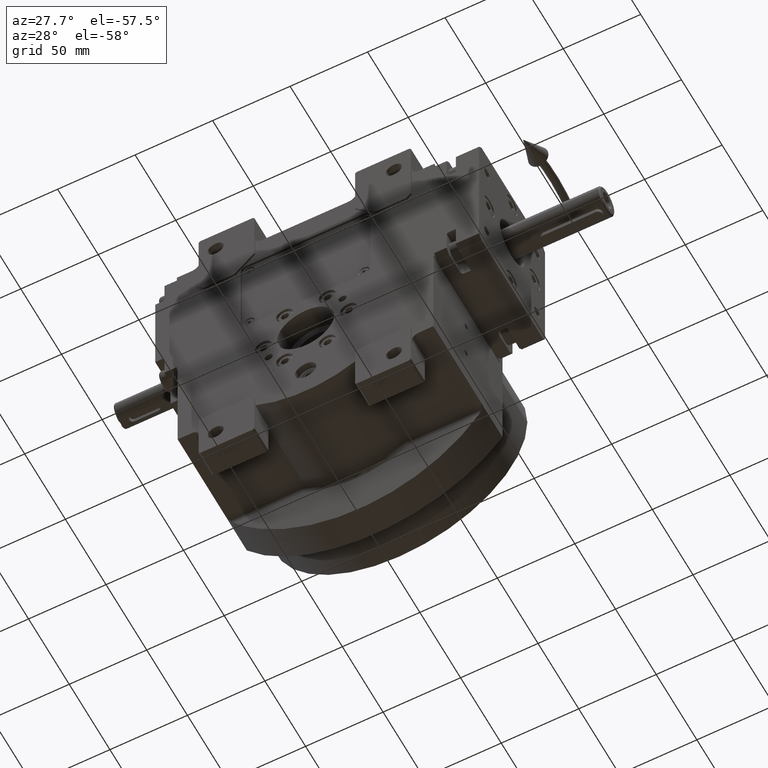
[diagram: clean part render]
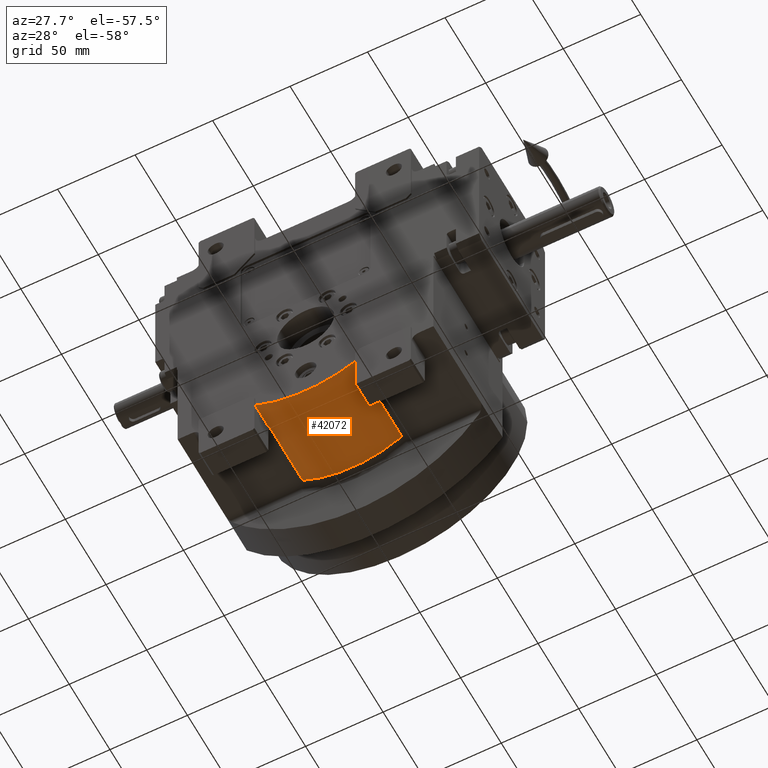
[diagram: same view with one face highlighted and labeled with its STEP entity id]
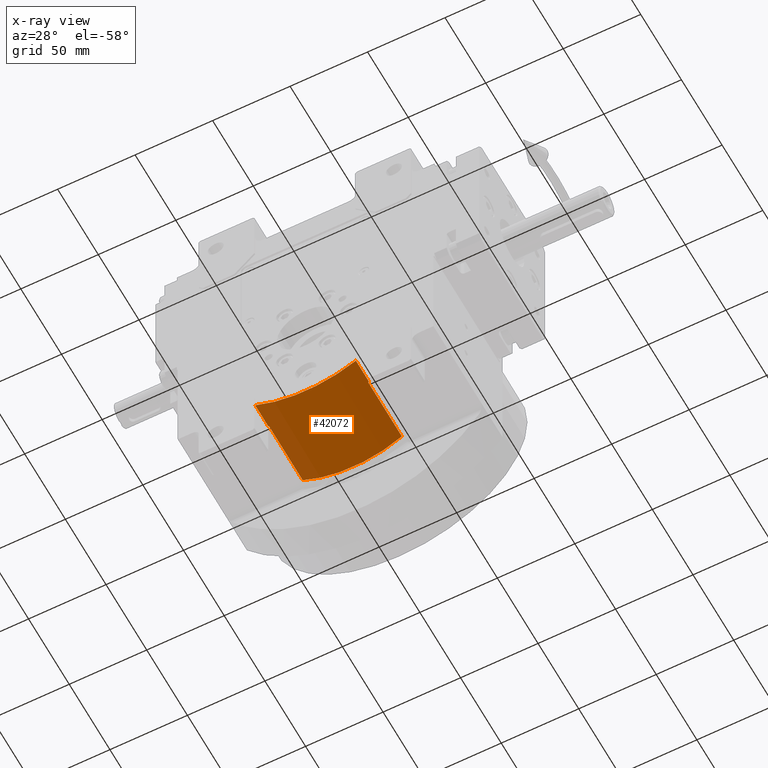
[diagram: x-ray of the same camera — body ghosted, the highlighted face saturated]
A machine part, auxiliary view. The second image highlights one B-rep face of the part: STEP entity #42072.
The next image is the same camera in x-ray: the body ghosted, the highlighted face saturated — about 0% of this face is hidden behind the body in this view.
In plain terms, the highlighted cylindrical surface (partial cylindrical patch) has radius 67 mm, axis along (0, 1, 0).
Its self-contained STEP definition (entity closure, byte-faithful):
#1488 = CARTESIAN_POINT ( 'NONE',  ( -31.98736729856865324, -24.50000000000000000, -58.87111629064339979 ) ) ;
#2259 = VERTEX_POINT ( 'NONE', #62065 ) ;
#3034 = DIRECTION ( 'NONE',  ( 0.000000000000000000, -1.000000000000000000, 1.332267629550188046E-15 ) ) ;
#4819 = EDGE_CURVE ( 'NONE', #37618, #5201, #71367, .T. ) ;
#5201 = VERTEX_POINT ( 'NONE', #53385 ) ;
#6222 = DIRECTION ( 'NONE',  ( 0.000000000000000000, -1.000000000000000000, 0.000000000000000000 ) ) ;
#6969 = CARTESIAN_POINT ( 'NONE',  ( -32.50000000000000000, -40.50000000000000000, -58.58967485828879518 ) ) ;
#7958 = B_SPLINE_CURVE_WITH_KNOTS ( 'NONE', 3,
 ( #26420, #53611, #54327, #71161 ),
 .UNSPECIFIED., .F., .F.,
 ( 4, 4 ),
 ( 0.000000000000000000, 1.000000000000000000 ),
 .UNSPECIFIED. ) ;
#7963 = EDGE_CURVE ( 'NONE', #8195, #10354, #27126, .T. ) ;
#8195 = VERTEX_POINT ( 'NONE', #42865 ) ;
#8889 = EDGE_CURVE ( 'NONE', #37618, #35265, #7958, .T. ) ;
#10007 = CARTESIAN_POINT ( 'NONE',  ( 32.50000000000000000, -24.50000000000000000, -58.58967485828879518 ) ) ;
#10354 = VERTEX_POINT ( 'NONE', #6969 ) ;
#11434 = CARTESIAN_POINT ( 'NONE',  ( -31.98743979880390498, 16.91834305889650025, -58.87107689861610282 ) ) ;
#12203 = VECTOR ( 'NONE', #66267, 1000.000000000000114 ) ;
#15135 = DIRECTION ( 'NONE',  ( -0.4850746268656720428, 0.000000000000000000, -0.8744727590789371785 ) ) ;
#19062 = CARTESIAN_POINT ( 'NONE',  ( 32.50000000000000000, -24.50000000000000000, -58.58967485828879518 ) ) ;
#20300 = B_SPLINE_CURVE_WITH_KNOTS ( 'NONE', 3,
 ( #1488, #51732, #39681, #67144 ),
 .UNSPECIFIED., .F., .F.,
 ( 4, 4 ),
 ( 0.000000000000000000, 1.000000000000000000 ),
 .UNSPECIFIED. ) ;
#20363 = B_SPLINE_CURVE_WITH_KNOTS ( 'NONE', 3,
 ( #43383, #37880, #60230, #47424, #60590, #61304, #56522, #66073, #33086, #11434 ),
 .UNSPECIFIED., .F., .F.,
 ( 4, 1, 1, 1, 1, 1, 1, 4 ),
 ( 0.000000000000000000, 0.1305023962609451471, 0.2778841802425977558, 0.4260802021475848522, 0.5745278981235040217, 0.7227241387829929087, 0.8701063549861712820, 1.000000000000000000 ),
 .UNSPECIFIED. ) ;
#20521 = ORIENTED_EDGE ( 'NONE', *, *, #72165, .T. ) ;
#21134 = DIRECTION ( 'NONE',  ( 2.301971673942290477E-06, 0.9999999999965683006, 1.250768801893084184E-06 ) ) ;
#23523 = VECTOR ( 'NONE', #3034, 1000.000000000000000 ) ;
#24309 = EDGE_CURVE ( 'NONE', #35265, #60151, #58788, .T. ) ;
#24422 = EDGE_CURVE ( 'NONE', #5201, #31665, #20363, .T. ) ;
#25530 = AXIS2_PLACEMENT_3D ( 'NONE', #66237, #55249, #27701 ) ;
#26420 = CARTESIAN_POINT ( 'NONE',  ( 31.98736729856859640, -24.50000000000000000, -58.87111629064349927 ) ) ;
#26514 = CARTESIAN_POINT ( 'NONE',  ( -31.98743979880390498, 16.91834305889650025, -58.87107689861610282 ) ) ;
#27126 = LINE ( 'NONE', #34085, #42436 ) ;
#27701 = DIRECTION ( 'NONE',  ( 0.000000000000000000, 0.000000000000000000, 1.000000000000000000 ) ) ;
#28106 = LINE ( 'NONE', #39512, #12203 ) ;
#28436 = CYLINDRICAL_SURFACE ( 'NONE', #25530, 67.00000000000000000 ) ;
#31266 = DIRECTION ( 'NONE',  ( 0.000000000000000000, -1.000000000000000000, 0.000000000000000000 ) ) ;
#31665 = VERTEX_POINT ( 'NONE', #26514 ) ;
#33086 = CARTESIAN_POINT ( 'NONE',  ( -29.45257542784745652, 17.04781651606748127, -60.24818422784169769 ) ) ;
#33194 = ORIENTED_EDGE ( 'NONE', *, *, #55308, .F. ) ;
#34085 = CARTESIAN_POINT ( 'NONE',  ( -32.50000000000000000, -24.50000000000000000, -58.58967485828879518 ) ) ;
#35265 = VERTEX_POINT ( 'NONE', #19062 ) ;
#37353 = AXIS2_PLACEMENT_3D ( 'NONE', #59124, #31266, #15135 ) ;
#37618 = VERTEX_POINT ( 'NONE', #41286 ) ;
#37880 = CARTESIAN_POINT ( 'NONE',  ( 29.44072205902208239, 17.04842239295195228, -60.25462851536783404 ) ) ;
#38023 = CARTESIAN_POINT ( 'NONE',  ( 31.98736729856859640, -24.50000000000000000, -58.87111629064349927 ) ) ;
#39512 = CARTESIAN_POINT ( 'NONE',  ( -31.98736729856865324, -24.50000000000000000, -58.87111629064339979 ) ) ;
#39681 = CARTESIAN_POINT ( 'NONE',  ( -32.32912243285621656, -24.50000000000000000, -58.68348866907366101 ) ) ;
#40928 = EDGE_CURVE ( 'NONE', #10354, #60151, #60734, .T. ) ;
#41286 = CARTESIAN_POINT ( 'NONE',  ( 31.98736729856859640, -24.50000000000000000, -58.87111629064349927 ) ) ;
#42072 = ADVANCED_FACE ( 'NONE', ( #43894 ), #28436, .T. ) ;
#42436 = VECTOR ( 'NONE', #6222, 1000.000000000000000 ) ;
#42854 = ORIENTED_EDGE ( 'NONE', *, *, #40928, .F. ) ;
#42865 = CARTESIAN_POINT ( 'NONE',  ( -32.50000000000000000, -24.50000000000000000, -58.58967485828879518 ) ) ;
#43383 = CARTESIAN_POINT ( 'NONE',  ( 31.98743443817719623, 16.91834202203235193, -58.87106939620260704 ) ) ;
#43894 = FACE_OUTER_BOUND ( 'NONE', #70647, .T. ) ;
#44079 = ORIENTED_EDGE ( 'NONE', *, *, #24422, .F. ) ;
#47424 = CARTESIAN_POINT ( 'NONE',  ( 14.73316218924969867, 17.55175164572757396, -65.60818880316627144 ) ) ;
#51732 = CARTESIAN_POINT ( 'NONE',  ( -32.15824486571243312, -24.50000000000000000, -58.77730247985853396 ) ) ;
#51953 = ORIENTED_EDGE ( 'NONE', *, *, #7963, .F. ) ;
#52168 = ORIENTED_EDGE ( 'NONE', *, *, #4819, .F. ) ;
#53385 = CARTESIAN_POINT ( 'NONE',  ( 31.98743443817719623, 16.91834202203235193, -58.87106939620260704 ) ) ;
#53611 = CARTESIAN_POINT ( 'NONE',  ( 32.15865320869608013, -24.50000000000000000, -58.77804882962796285 ) ) ;
#54327 = CARTESIAN_POINT ( 'NONE',  ( 32.32953294561936985, -24.50000000000000000, -58.68423382760842344 ) ) ;
#54889 = CARTESIAN_POINT ( 'NONE',  ( 32.50000000000000000, -40.50000000000000000, -58.58967485828879518 ) ) ;
#55249 = DIRECTION ( 'NONE',  ( 0.000000000000000000, 1.000000000000000000, 0.000000000000000000 ) ) ;
#55308 = EDGE_CURVE ( 'NONE', #2259, #8195, #20300, .T. ) ;
#56522 = CARTESIAN_POINT ( 'NONE',  ( -14.77288173921127701, 17.55091193554919471, -65.59925739486833152 ) ) ;
#58788 = LINE ( 'NONE', #10007, #23523 ) ;
#59124 = CARTESIAN_POINT ( 'NONE',  ( -1.065814103640149963E-14, -40.50000000000000000, -4.263256414560599853E-14 ) ) ;
#60151 = VERTEX_POINT ( 'NONE', #54889 ) ;
#60230 = CARTESIAN_POINT ( 'NONE',  ( 23.82086331600217122, 17.29258934410870197, -62.85166114526040104 ) ) ;
#60590 = CARTESIAN_POINT ( 'NONE',  ( 4.939540285032240519, 17.68847108994751594, -67.06237765336878454 ) ) ;
#60734 = CIRCLE ( 'NONE', #37353, 66.99999999999998579 ) ;
#61304 = CARTESIAN_POINT ( 'NONE',  ( -4.980135495433235526, 17.68818881517152874, -67.05937529452785384 ) ) ;
#62065 = CARTESIAN_POINT ( 'NONE',  ( -31.98736729856865324, -24.50000000000000000, -58.87111629064339979 ) ) ;
#64380 = VECTOR ( 'NONE', #21134, 1000.000000000000000 ) ;
#66073 = CARTESIAN_POINT ( 'NONE',  ( -23.84593580562536630, 17.29160312582579095, -62.84117143299615549 ) ) ;
#66237 = CARTESIAN_POINT ( 'NONE',  ( 0.000000000000000000, -40.50000000000000000, 6.123233995736770082E-21 ) ) ;
#66267 = DIRECTION ( 'NONE',  ( -2.333977630622874967E-06, 0.9999999999964721553, 1.268123427896753933E-06 ) ) ;
#66740 = ORIENTED_EDGE ( 'NONE', *, *, #8889, .T. ) ;
#67144 = CARTESIAN_POINT ( 'NONE',  ( -32.50000000000000000, -24.50000000000000000, -58.58967485828879518 ) ) ;
#69976 = ORIENTED_EDGE ( 'NONE', *, *, #24309, .T. ) ;
#70647 = EDGE_LOOP ( 'NONE', ( #52168, #66740, #69976, #42854, #51953, #33194, #20521, #44079 ) ) ;
#71161 = CARTESIAN_POINT ( 'NONE',  ( 32.50000000000000000, -24.50000000000000000, -58.58967485828879518 ) ) ;
#71367 = LINE ( 'NONE', #38023, #64380 ) ;
#72165 = EDGE_CURVE ( 'NONE', #2259, #31665, #28106, .T. ) ;